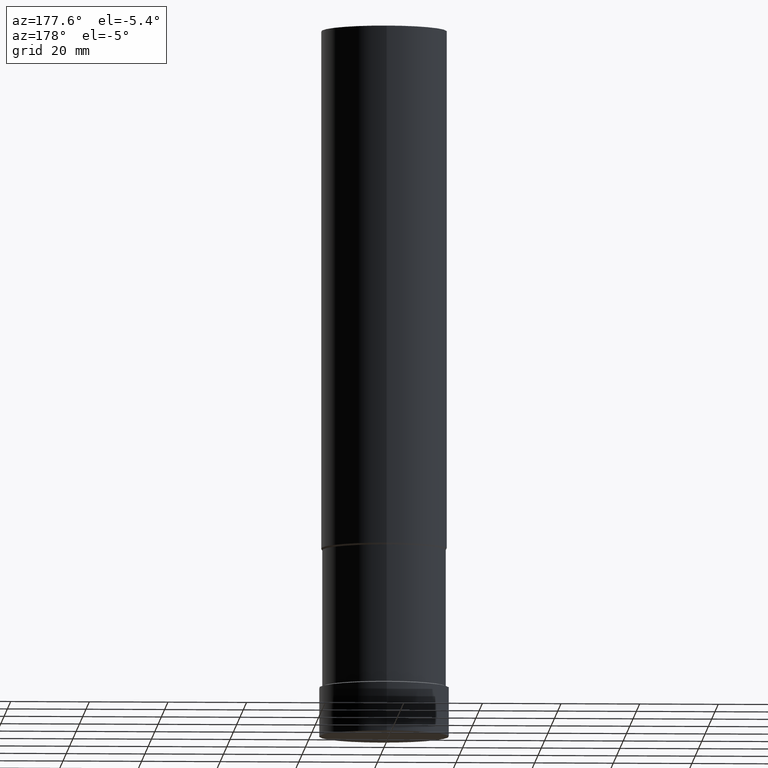
[diagram: clean part render]
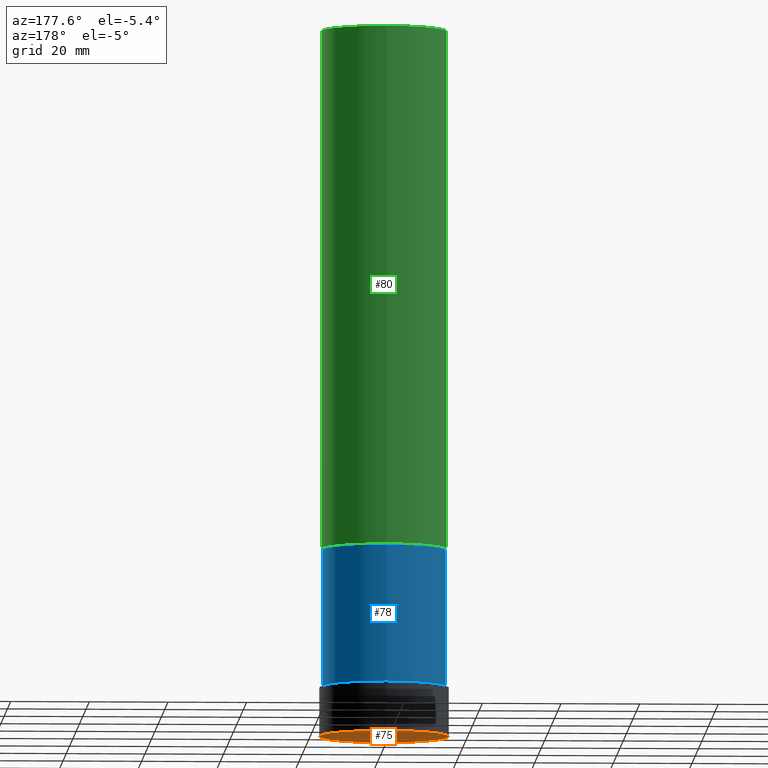
[diagram: same view with three faces highlighted in distinct colors, each labeled with its STEP entity id]
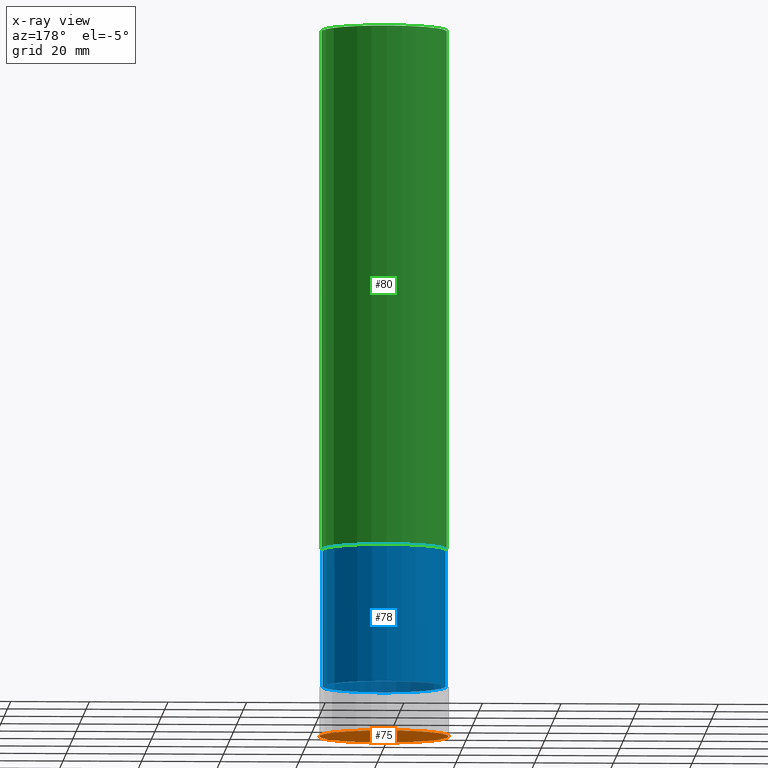
[diagram: x-ray of the same camera — body ghosted, the three highlighted faces saturated]
A machine part, auxiliary view with three faces highlighted in distinct colors.
The next image is the same camera in x-ray (body ghosted, the three faces saturated) — at least one of them is partly hidden behind the body in this view.
Their STEP definitions:

[orange] entity #75 — the highlighted planar face has unit normal (0, 0, -1).
#75=ADVANCED_FACE('',(#83),#84,.T.);
#83=FACE_OUTER_BOUND('',#102,.T.);
#84=PLANE('',#103);
#102=EDGE_LOOP('',(#121));
#103=AXIS2_PLACEMENT_3D('',#122,#123,#124);
#121=ORIENTED_EDGE('',*,*,#154,.F.);
#122=CARTESIAN_POINT('',(-1.01689101063646E-031,8.25000000000001,1.01033360929657E-015));
#123=DIRECTION('',(6.12323399573677E-017,1.22464679914735E-016,-1.0));
#124=DIRECTION('',(1.23259516440783E-032,-1.0,-1.22464679914735E-016));
#154=EDGE_CURVE('',#160,#160,#161,.T.);
#160=VERTEX_POINT('',#172);
#161=CIRCLE('',#173,16.5);
#172=CARTESIAN_POINT('',(-2.03378202127292E-031,16.5,2.02066721859314E-015));
#173=AXIS2_PLACEMENT_3D('',#184,#185,#186);
#184=CARTESIAN_POINT('',(-1.04419666440721E-029,-3.94227684926667E-015,1.70530256582424E-013));
#185=DIRECTION('',(-6.12323399573677E-017,1.03967763703291E-014,1.0));
#186=DIRECTION('',(6.31791792437952E-031,1.0,-1.03967763703291E-014));

[blue] entity #78 — the highlighted cylindrical surface (bore or boss wall) has radius 15.75 mm, axis along (0, -0, -1).
#78=ADVANCED_FACE('',(#91,#92),#93,.T.);
#91=FACE_BOUND('',#110,.T.);
#92=FACE_BOUND('',#111,.T.);
#93=CYLINDRICAL_SURFACE('',#112,15.75);
#110=EDGE_LOOP('',(#135));
#111=EDGE_LOOP('',(#136));
#112=AXIS2_PLACEMENT_3D('',#137,#138,#139);
#135=ORIENTED_EDGE('',*,*,#157,.F.);
#136=ORIENTED_EDGE('',*,*,#156,.T.);
#137=CARTESIAN_POINT('',(-1.84586904768877E-015,3.09471969790566E-013,30.1453292324602));
#138=DIRECTION('',(6.12323399573677E-017,-1.03967763703291E-014,-1.0));
#139=DIRECTION('',(6.31791792437952E-031,1.0,-1.03967763703291E-014));
#156=EDGE_CURVE('',#164,#164,#165,.T.);
#157=EDGE_CURVE('',#166,#166,#167,.T.);
#164=VERTEX_POINT('',#176);
#165=CIRCLE('',#177,15.75);
#166=VERTEX_POINT('',#178);
#167=CIRCLE('',#179,15.7499999999999);
#176=CARTESIAN_POINT('',(-7.79100158392006E-016,15.7500000000001,12.7236711668123));
#177=AXIS2_PLACEMENT_3D('',#190,#191,#192);
#178=CARTESIAN_POINT('',(-2.91263793698552E-015,15.7500000000004,47.5669872981077));
#179=AXIS2_PLACEMENT_3D('',#193,#194,#195);
#190=CARTESIAN_POINT('',(-7.79100158392016E-016,1.28342886881686E-013,12.7236711668124));
#191=DIRECTION('',(-6.12323399573677E-017,1.03967763703291E-014,1.0));
#192=DIRECTION('',(6.31791792437952E-031,1.0,-1.03967763703291E-014));
#193=CARTESIAN_POINT('',(-2.91263793698553E-015,4.90601052699447E-013,47.5669872981079));
#194=DIRECTION('',(-6.12323399573677E-017,1.03967763703291E-014,1.0));
#195=DIRECTION('',(6.31791792437952E-031,1.0,-1.03967763703291E-014));

[green] entity #80 — the highlighted cylindrical surface (bore or boss wall) has radius 16 mm, axis along (0, -0, -1).
#80=ADVANCED_FACE('',(#97,#98),#99,.T.);
#97=FACE_BOUND('',#116,.T.);
#98=FACE_BOUND('',#117,.T.);
#99=CYLINDRICAL_SURFACE('',#118,16.0);
#116=EDGE_LOOP('',(#145));
#117=EDGE_LOOP('',(#146));
#118=AXIS2_PLACEMENT_3D('',#147,#148,#149);
#145=ORIENTED_EDGE('',*,*,#159,.F.);
#146=ORIENTED_EDGE('',*,*,#158,.T.);
#147=CARTESIAN_POINT('',(-6.98048675513991E-015,1.18129022936825E-012,114.0));
#148=DIRECTION('',(6.12323399573677E-017,-1.03967763703291E-014,-1.0));
#149=DIRECTION('',(6.31791792437952E-031,1.0,-1.03967763703291E-014));
#158=EDGE_CURVE('',#168,#168,#169,.T.);
#159=EDGE_CURVE('',#170,#170,#171,.T.);
#168=VERTEX_POINT('',#180);
#169=CIRCLE('',#181,16.0);
#170=VERTEX_POINT('',#182);
#171=CIRCLE('',#183,16.0);
#180=CARTESIAN_POINT('',(-2.93915231795363E-015,16.0000000000005,47.9999999999997));
#181=AXIS2_PLACEMENT_3D('',#196,#197,#198);
#182=CARTESIAN_POINT('',(-1.10218211923262E-014,16.0000000000019,180.0));
#183=AXIS2_PLACEMENT_3D('',#199,#200,#201);
#196=CARTESIAN_POINT('',(-2.93915231795364E-015,4.95102988926529E-013,47.9999999999998));
#197=DIRECTION('',(-6.12323399573676E-017,1.03967763703291E-014,1.0));
#198=DIRECTION('',(6.31791792437952E-031,1.0,-1.03967763703291E-014));
#199=CARTESIAN_POINT('',(-1.10218211923262E-014,1.86747746980998E-012,180.0));
#200=DIRECTION('',(-6.12323399573677E-017,1.03967763703291E-014,1.0));
#201=DIRECTION('',(6.31791792437952E-031,1.0,-1.03967763703291E-014));